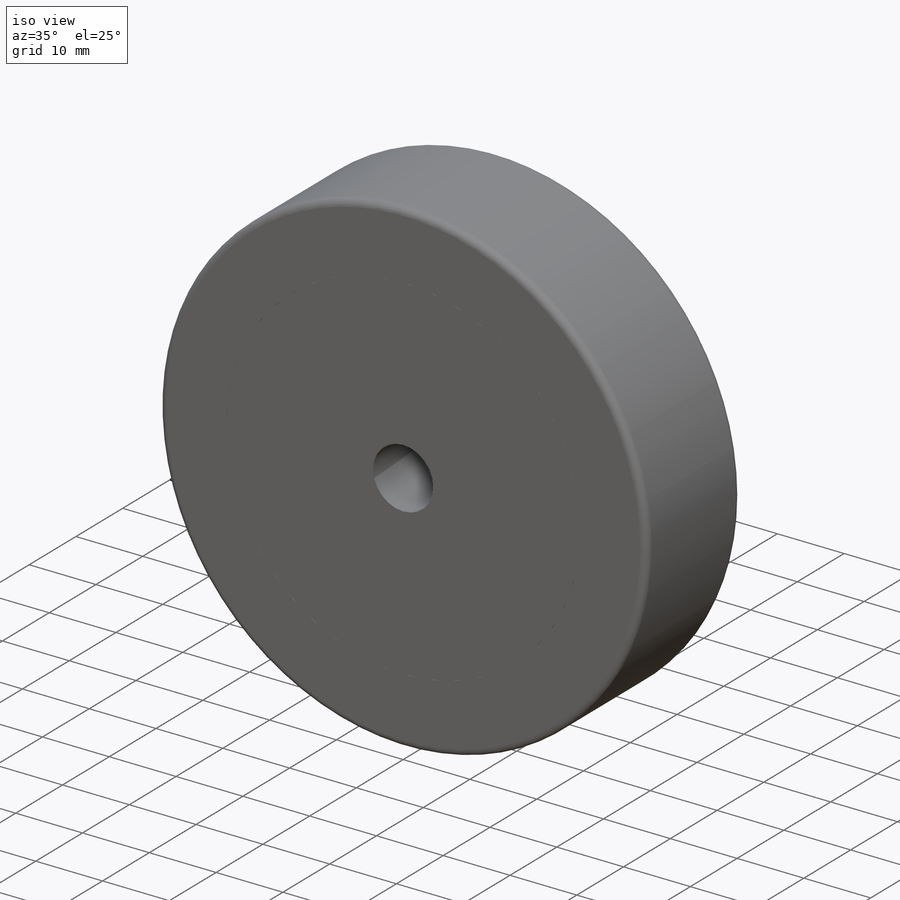
[diagram: iso view]
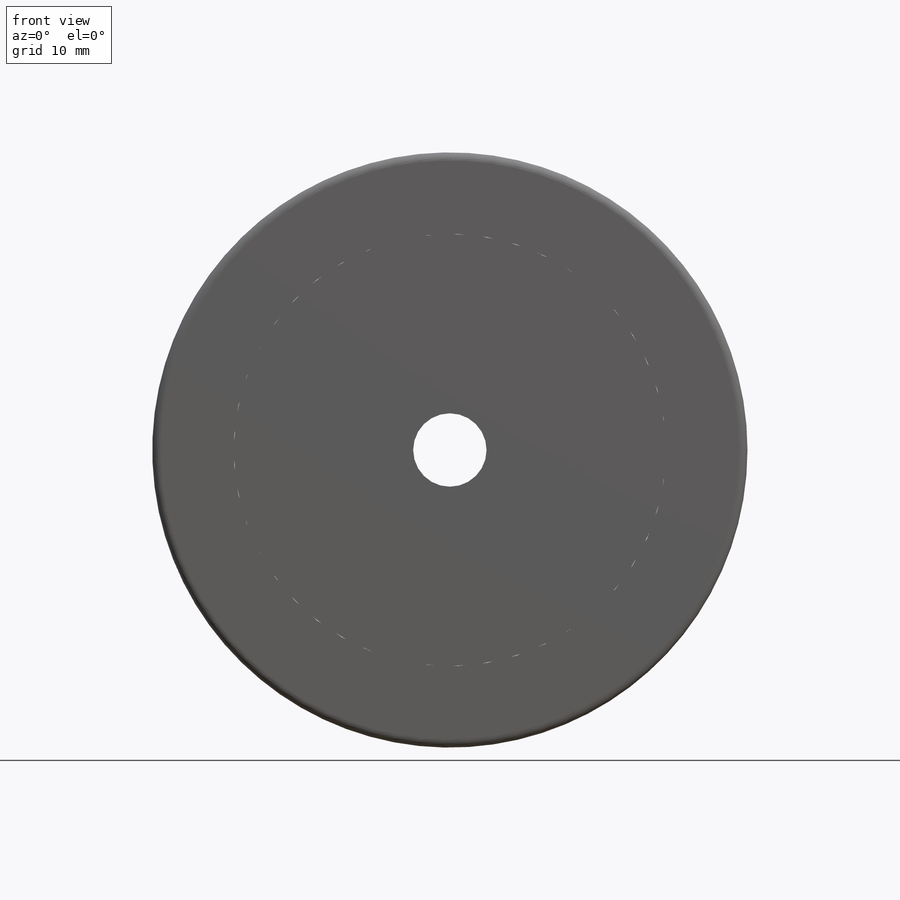
[diagram: front view]
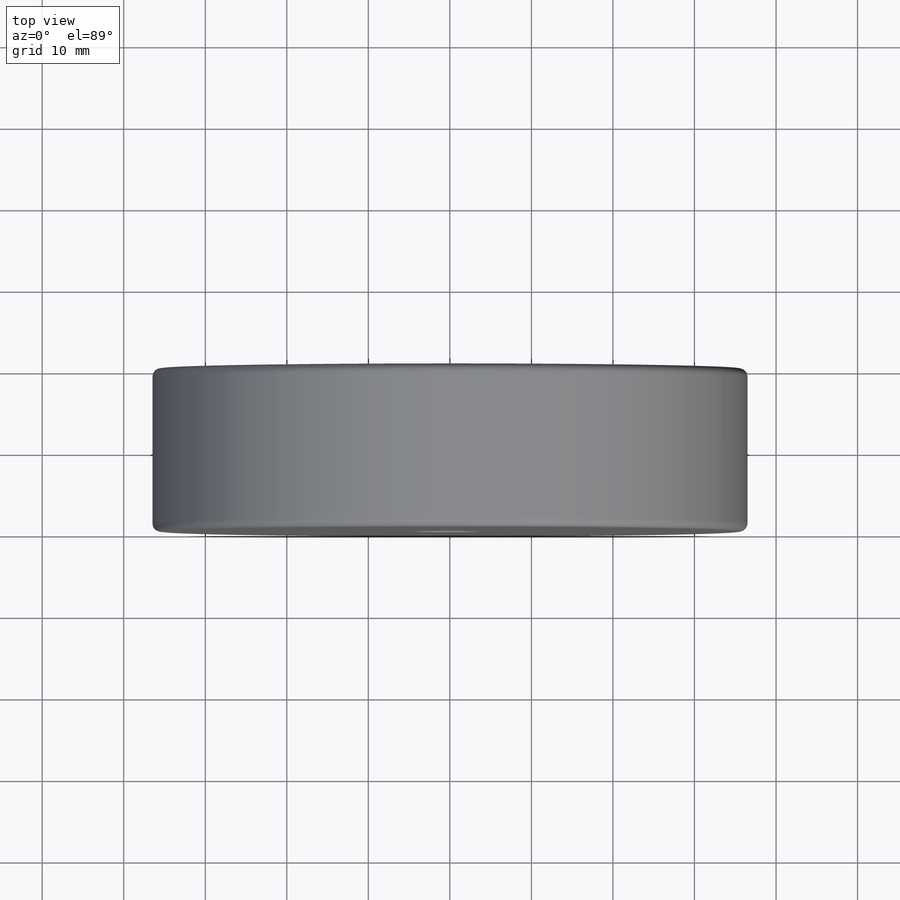
[diagram: top view]
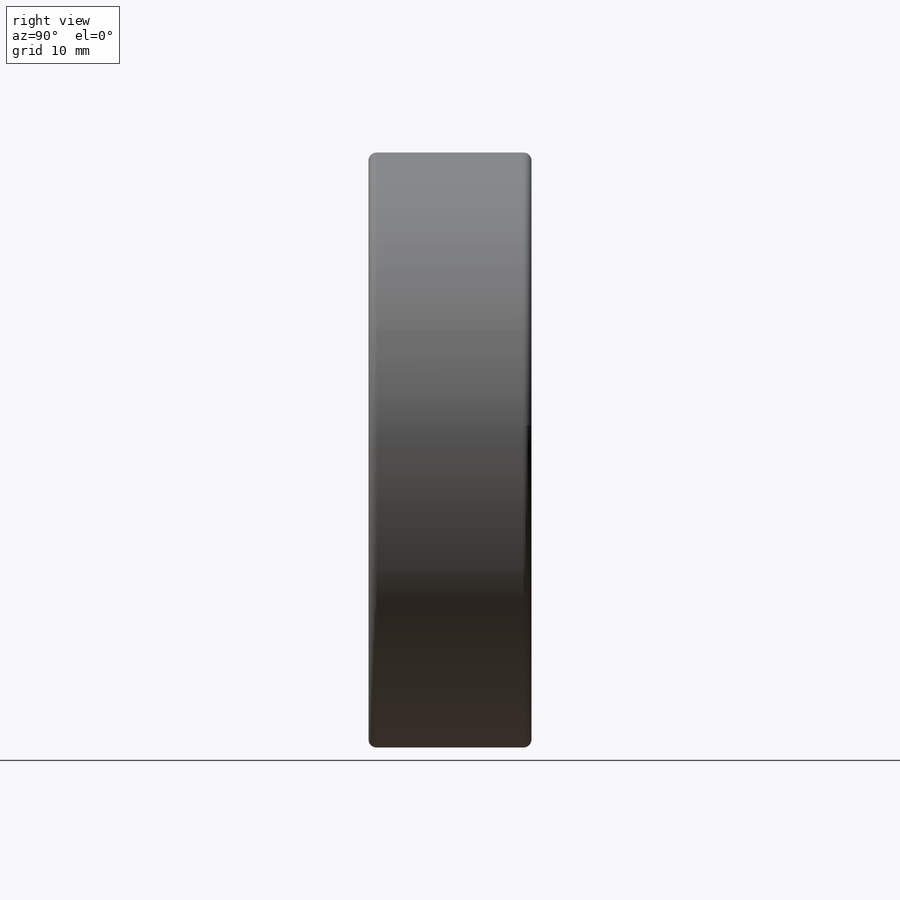
[diagram: right view]
SOLIDWORKS PART (.sldprt)
format: sldprt  version: not decoded by parser v0  size: 202,752 bytes
history: native  units: mm
features: sketch x5, plane x3, extrude x2, material x1, cut_extrude x1, hole x1, fillet x1 (+13 scaffold rows collapsed)
feature tree (27):
  scaffold x13  (default folders/planes/origin — collapsed)
  material  "Matériau <non spécifié>"
  plane  "Plan de face"
  plane  "Plan de dessus"
  plane  "Plan de droite"
  sketch  "Esquisse1"  dims[D1=73.0mm]
  extrude  "Boss.-Extru.1"  Depth=20mm
  sketch  "Esquisse2"  dims[D1=53.0mm]
  cut_extrude  "Enlèv. mat.-Extru.2"  Depth=20mm
  sketch  "Esquisse4"  dims[D1=53.0mm]
  extrude  "Boss.-Extru.3"  Depth=20mm
  hole  "Dégagement M81"  Diameter=9mm Depth=20mm
  sketch  "Esquisse10"
  sketch  "Esquisse9"  dims[hole-wizard template sketch: 59 standard entries collapsed; hole parameters kept: c18.Diamètre du perçage jusqu'au prochain=9.0mm c18.Profondeur du perçage jusqu'au prochain=20.0mm]
  fillet  "Congé1"  Radius=1mm
decode coverage: 9 of 10 modeling features carry decoded parameters
note: ~ marks probable driven/reference dimensions
note: suppression state not decoded; provenance and decode notes live in map.json
